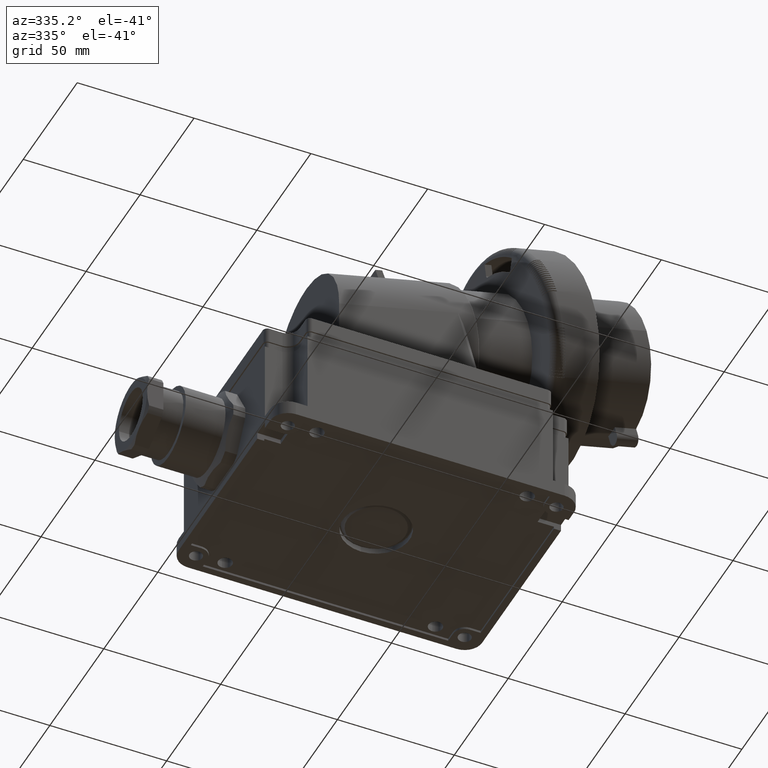
[diagram: clean part render]
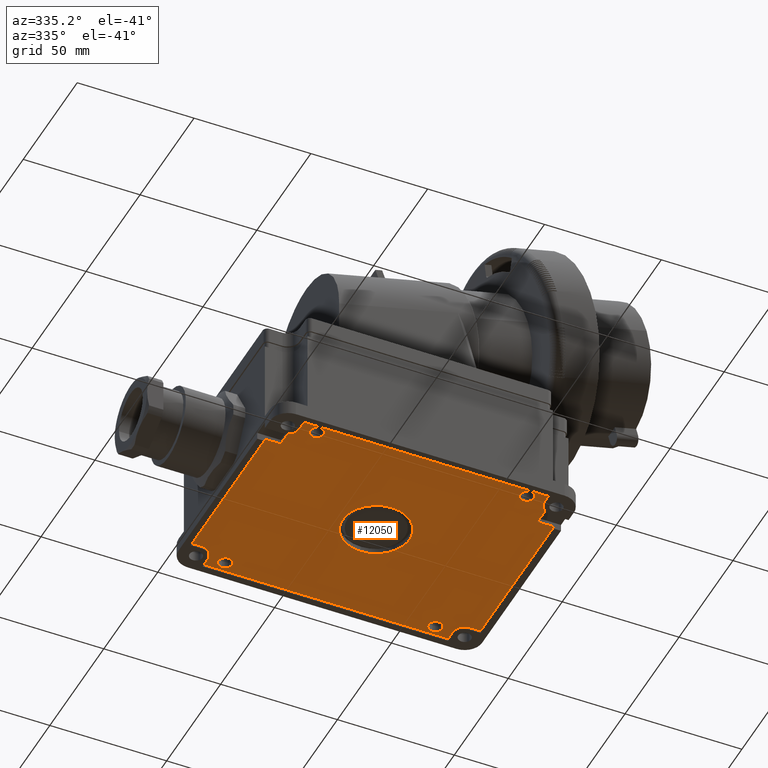
[diagram: same view with one face highlighted and labeled with its STEP entity id]
A machine part, auxiliary view. The second image highlights one B-rep face of the part: STEP entity #12050.
In plain terms, the highlighted planar face has unit normal (0, 0, 1).
Its self-contained STEP definition (entity closure, byte-faithful):
#3530=CARTESIAN_POINT('',(69.,61.3,1.));
#3540=VERTEX_POINT('',#3530);
#3700=CARTESIAN_POINT('',(69.,32.7,1.));
#3710=VERTEX_POINT('',#3700);
#3740=CARTESIAN_POINT('',(69.,47.,1.));
#3750=DIRECTION('',(0.,0.,-1.));
#3760=DIRECTION('',(0.,-1.,0.));
#3770=AXIS2_PLACEMENT_3D('',#3740,#3750,#3760);
#3780=CIRCLE('',#3770,14.3);
#3790=EDGE_CURVE('',#3540,#3710,#3780,.T.);
#9690=CARTESIAN_POINT('',(69.,47.,1.));
#9700=DIRECTION('',(0.,0.,1.));
#9710=DIRECTION('',(1.,0.,0.));
#9720=AXIS2_PLACEMENT_3D('',#9690,#9700,#9710);
#9730=PLANE('',#9720);
#9740=CARTESIAN_POINT('',(24.,89.5,1.));
#9750=DIRECTION('',(0.,0.,-1.));
#9760=DIRECTION('',(0.,1.,0.));
#9770=AXIS2_PLACEMENT_3D('',#9740,#9750,#9760);
#9780=CIRCLE('',#9770,3.);
#9790=CARTESIAN_POINT('',(24.,92.5,1.));
#9800=VERTEX_POINT('',#9790);
#9810=CARTESIAN_POINT('',(24.,86.5,1.));
#9820=VERTEX_POINT('',#9810);
#9830=EDGE_CURVE('',#9800,#9820,#9780,.T.);
#9840=ORIENTED_EDGE('',*,*,#9830,.F.);
#9850=EDGE_CURVE('',#9820,#9800,#9780,.T.);
#9860=ORIENTED_EDGE('',*,*,#9850,.F.);
#9870=EDGE_LOOP('',(#9860,#9840));
#9880=FACE_BOUND('',#9870,.T.);
#9890=EDGE_CURVE('',#3710,#3540,#3780,.T.);
#9900=ORIENTED_EDGE('',*,*,#9890,.F.);
#9910=ORIENTED_EDGE('',*,*,#3790,.F.);
#9920=EDGE_LOOP('',(#9910,#9900));
#9930=FACE_BOUND('',#9920,.T.);
#9940=CARTESIAN_POINT('',(114.,89.5,1.));
#9950=DIRECTION('',(0.,0.,1.));
#9960=DIRECTION('',(0.,1.,0.));
#9970=AXIS2_PLACEMENT_3D('',#9940,#9950,#9960);
#9980=CIRCLE('',#9970,3.);
#9990=CARTESIAN_POINT('',(114.,92.5,1.));
#10000=VERTEX_POINT('',#9990);
#10010=CARTESIAN_POINT('',(114.,86.5,1.));
#10020=VERTEX_POINT('',#10010);
#10030=EDGE_CURVE('',#10000,#10020,#9980,.T.);
#10040=ORIENTED_EDGE('',*,*,#10030,.T.);
#10050=EDGE_CURVE('',#10020,#10000,#9980,.T.);
#10060=ORIENTED_EDGE('',*,*,#10050,.T.);
#10070=EDGE_LOOP('',(#10060,#10040));
#10080=FACE_BOUND('',#10070,.T.);
#10090=CARTESIAN_POINT('',(24.,4.5,1.));
#10100=DIRECTION('',(0.,0.,-1.));
#10110=DIRECTION('',(0.,1.,0.));
#10120=AXIS2_PLACEMENT_3D('',#10090,#10100,#10110);
#10130=CIRCLE('',#10120,3.);
#10140=CARTESIAN_POINT('',(24.,7.5,1.));
#10150=VERTEX_POINT('',#10140);
#10160=CARTESIAN_POINT('',(24.,1.5,1.));
#10170=VERTEX_POINT('',#10160);
#10180=EDGE_CURVE('',#10150,#10170,#10130,.T.);
#10190=ORIENTED_EDGE('',*,*,#10180,.F.);
#10200=EDGE_CURVE('',#10170,#10150,#10130,.T.);
#10210=ORIENTED_EDGE('',*,*,#10200,.F.);
#10220=EDGE_LOOP('',(#10210,#10190));
#10230=FACE_BOUND('',#10220,.T.);
#10240=CARTESIAN_POINT('',(114.,4.5,1.));
#10250=DIRECTION('',(0.,0.,1.));
#10260=DIRECTION('',(0.,1.,0.));
#10270=AXIS2_PLACEMENT_3D('',#10240,#10250,#10260);
#10280=CIRCLE('',#10270,3.);
#10290=CARTESIAN_POINT('',(114.,7.5,1.));
#10300=VERTEX_POINT('',#10290);
#10310=CARTESIAN_POINT('',(114.,1.5,1.));
#10320=VERTEX_POINT('',#10310);
#10330=EDGE_CURVE('',#10300,#10320,#10280,.T.);
#10340=ORIENTED_EDGE('',*,*,#10330,.T.);
#10350=EDGE_CURVE('',#10320,#10300,#10280,.T.);
#10360=ORIENTED_EDGE('',*,*,#10350,.T.);
#10370=EDGE_LOOP('',(#10360,#10340));
#10380=FACE_BOUND('',#10370,.T.);
#10390=CARTESIAN_POINT('',(121.5,-10.5,1.));
#10400=DIRECTION('',(0.,1.,0.));
#10410=VECTOR('',#10400,1.);
#10420=LINE('',#10390,#10410);
#10430=CARTESIAN_POINT('',(121.5,0.,1.));
#10440=VERTEX_POINT('',#10430);
#10450=CARTESIAN_POINT('',(121.5,4.5,1.));
#10460=VERTEX_POINT('',#10450);
#10470=EDGE_CURVE('',#10440,#10460,#10420,.T.);
#10480=ORIENTED_EDGE('',*,*,#10470,.F.);
#10490=CARTESIAN_POINT('',(126.5,4.5,1.));
#10500=DIRECTION('',(0.,0.,-1.));
#10510=DIRECTION('',(-1.,0.,0.));
#10520=AXIS2_PLACEMENT_3D('',#10490,#10500,#10510);
#10530=CIRCLE('',#10520,5.);
#10540=CARTESIAN_POINT('',(126.5,9.5,1.));
#10550=VERTEX_POINT('',#10540);
#10560=EDGE_CURVE('',#10460,#10550,#10530,.T.);
#10570=ORIENTED_EDGE('',*,*,#10560,.F.);
#10580=CARTESIAN_POINT('',(138.,9.5,1.));
#10590=DIRECTION('',(1.,0.,0.));
#10600=VECTOR('',#10590,1.);
#10610=LINE('',#10580,#10600);
#10620=CARTESIAN_POINT('',(124.,9.5,1.));
#10630=VERTEX_POINT('',#10620);
#10640=EDGE_CURVE('',#10630,#10550,#10610,.T.);
#10650=ORIENTED_EDGE('',*,*,#10640,.T.);
#10660=CARTESIAN_POINT('',(124.,0.,1.));
#10670=DIRECTION('',(0.,-1.,0.));
#10680=VECTOR('',#10670,1.);
#10690=LINE('',#10660,#10680);
#10700=CARTESIAN_POINT('',(124.,16.5,1.));
#10710=VERTEX_POINT('',#10700);
#10720=EDGE_CURVE('',#10710,#10630,#10690,.T.);
#10730=ORIENTED_EDGE('',*,*,#10720,.T.);
#10740=CARTESIAN_POINT('',(138.,16.5,1.));
#10750=DIRECTION('',(-1.,0.,0.));
#10760=VECTOR('',#10750,1.);
#10770=LINE('',#10740,#10760);
#10780=CARTESIAN_POINT('',(131.,16.5,1.));
#10790=VERTEX_POINT('',#10780);
#10800=EDGE_CURVE('',#10790,#10710,#10770,.T.);
#10810=ORIENTED_EDGE('',*,*,#10800,.T.);
#10820=CARTESIAN_POINT('',(131.,-3.,1.));
#10830=DIRECTION('',(0.,1.,0.));
#10840=VECTOR('',#10830,1.);
#10850=LINE('',#10820,#10840);
#10860=CARTESIAN_POINT('',(131.,84.5,1.));
#10870=VERTEX_POINT('',#10860);
#10880=EDGE_CURVE('',#10790,#10870,#10850,.T.);
#10890=ORIENTED_EDGE('',*,*,#10880,.F.);
#10900=CARTESIAN_POINT('',(121.5,84.5,1.));
#10910=DIRECTION('',(1.,0.,0.));
#10920=VECTOR('',#10910,1.);
#10930=LINE('',#10900,#10920);
#10940=CARTESIAN_POINT('',(126.5,84.5,1.));
#10950=VERTEX_POINT('',#10940);
#10960=EDGE_CURVE('',#10950,#10870,#10930,.T.);
#10970=ORIENTED_EDGE('',*,*,#10960,.T.);
#10980=CARTESIAN_POINT('',(126.5,89.5,1.));
#10990=DIRECTION('',(0.,0.,-1.));
#11000=DIRECTION('',(-1.,0.,0.));
#11010=AXIS2_PLACEMENT_3D('',#10980,#10990,#11000);
#11020=CIRCLE('',#11010,5.);
#11030=CARTESIAN_POINT('',(121.5,89.5,1.));
#11040=VERTEX_POINT('',#11030);
#11050=EDGE_CURVE('',#10950,#11040,#11020,.T.);
#11060=ORIENTED_EDGE('',*,*,#11050,.F.);
#11070=CARTESIAN_POINT('',(121.5,102.5,1.));
#11080=DIRECTION('',(-3.94745964311167E-16,-1.,0.));
#11090=VECTOR('',#11080,1.);
#11100=LINE('',#11070,#11090);
#11110=CARTESIAN_POINT('',(121.5,94.,1.));
#11120=VERTEX_POINT('',#11110);
#11130=EDGE_CURVE('',#11120,#11040,#11100,.T.);
#11140=ORIENTED_EDGE('',*,*,#11130,.T.);
#11150=CARTESIAN_POINT('',(4.,94.,1.));
#11160=DIRECTION('',(1.,0.,0.));
#11170=VECTOR('',#11160,1.);
#11180=LINE('',#11150,#11170);
#11190=CARTESIAN_POINT('',(16.5,94.,1.));
#11200=VERTEX_POINT('',#11190);
#11210=EDGE_CURVE('',#11200,#11120,#11180,.T.);
#11220=ORIENTED_EDGE('',*,*,#11210,.T.);
#11230=CARTESIAN_POINT('',(16.5,102.5,1.));
#11240=DIRECTION('',(3.94745964311167E-16,-1.,0.));
#11250=VECTOR('',#11240,1.);
#11260=LINE('',#11230,#11250);
#11270=CARTESIAN_POINT('',(16.5,89.5,1.));
#11280=VERTEX_POINT('',#11270);
#11290=EDGE_CURVE('',#11200,#11280,#11260,.T.);
#11300=ORIENTED_EDGE('',*,*,#11290,.F.);
#11310=CARTESIAN_POINT('',(11.5,89.5,1.));
#11320=DIRECTION('',(0.,0.,1.));
#11330=DIRECTION('',(1.,0.,0.));
#11340=AXIS2_PLACEMENT_3D('',#11310,#11320,#11330);
#11350=CIRCLE('',#11340,5.);
#11360=CARTESIAN_POINT('',(11.5,84.5,1.));
#11370=VERTEX_POINT('',#11360);
#11380=EDGE_CURVE('',#11370,#11280,#11350,.T.);
#11390=ORIENTED_EDGE('',*,*,#11380,.T.);
#11400=CARTESIAN_POINT('',(16.5,84.5,1.));
#11410=DIRECTION('',(-1.,0.,0.));
#11420=VECTOR('',#11410,1.);
#11430=LINE('',#11400,#11420);
#11440=CARTESIAN_POINT('',(7.,84.5,1.));
#11450=VERTEX_POINT('',#11440);
#11460=EDGE_CURVE('',#11370,#11450,#11430,.T.);
#11470=ORIENTED_EDGE('',*,*,#11460,.F.);
#11480=CARTESIAN_POINT('',(7.,-3.,1.));
#11490=DIRECTION('',(0.,1.,0.));
#11500=VECTOR('',#11490,1.);
#11510=LINE('',#11480,#11500);
#11520=CARTESIAN_POINT('',(7.,16.5,1.));
#11530=VERTEX_POINT('',#11520);
#11540=EDGE_CURVE('',#11530,#11450,#11510,.T.);
#11550=ORIENTED_EDGE('',*,*,#11540,.T.);
#11560=CARTESIAN_POINT('',(0.,16.5,1.));
#11570=DIRECTION('',(1.,0.,0.));
#11580=VECTOR('',#11570,1.);
#11590=LINE('',#11560,#11580);
#11600=CARTESIAN_POINT('',(14.,16.5,1.));
#11610=VERTEX_POINT('',#11600);
#11620=EDGE_CURVE('',#11530,#11610,#11590,.T.);
#11630=ORIENTED_EDGE('',*,*,#11620,.F.);
#11640=CARTESIAN_POINT('',(14.,0.,1.));
#11650=DIRECTION('',(0.,-1.,0.));
#11660=VECTOR('',#11650,1.);
#11670=LINE('',#11640,#11660);
#11680=CARTESIAN_POINT('',(14.,9.5,1.));
#11690=VERTEX_POINT('',#11680);
#11700=EDGE_CURVE('',#11610,#11690,#11670,.T.);
#11710=ORIENTED_EDGE('',*,*,#11700,.F.);
#11720=CARTESIAN_POINT('',(0.,9.5,1.));
#11730=DIRECTION('',(-1.,0.,0.));
#11740=VECTOR('',#11730,1.);
#11750=LINE('',#11720,#11740);
#11760=CARTESIAN_POINT('',(11.5,9.5,1.));
#11770=VERTEX_POINT('',#11760);
#11780=EDGE_CURVE('',#11690,#11770,#11750,.T.);
#11790=ORIENTED_EDGE('',*,*,#11780,.F.);
#11800=CARTESIAN_POINT('',(11.5,4.5,1.));
#11810=DIRECTION('',(0.,0.,1.));
#11820=DIRECTION('',(1.,0.,0.));
#11830=AXIS2_PLACEMENT_3D('',#11800,#11810,#11820);
#11840=CIRCLE('',#11830,5.);
#11850=CARTESIAN_POINT('',(16.5,4.5,1.));
#11860=VERTEX_POINT('',#11850);
#11870=EDGE_CURVE('',#11860,#11770,#11840,.T.);
#11880=ORIENTED_EDGE('',*,*,#11870,.T.);
#11890=CARTESIAN_POINT('',(16.5,-10.5,1.));
#11900=DIRECTION('',(0.,1.,0.));
#11910=VECTOR('',#11900,1.);
#11920=LINE('',#11890,#11910);
#11930=CARTESIAN_POINT('',(16.5,0.,1.));
#11940=VERTEX_POINT('',#11930);
#11950=EDGE_CURVE('',#11940,#11860,#11920,.T.);
#11960=ORIENTED_EDGE('',*,*,#11950,.T.);
#11970=CARTESIAN_POINT('',(134.,0.,1.));
#11980=DIRECTION('',(-1.,0.,0.));
#11990=VECTOR('',#11980,1.);
#12000=LINE('',#11970,#11990);
#12010=EDGE_CURVE('',#10440,#11940,#12000,.T.);
#12020=ORIENTED_EDGE('',*,*,#12010,.T.);
#12030=EDGE_LOOP('',(#12020,#11960,#11880,#11790,#11710,#11630,#11550,
#11470,#11390,#11300,#11220,#11140,#11060,#10970,#10890,#10810,#10730,
#10650,#10570,#10480));
#12040=FACE_OUTER_BOUND('',#12030,.T.);
#12050=ADVANCED_FACE('',(#9880,#9930,#10080,#10230,#10380,#12040),#9730,
.F.);